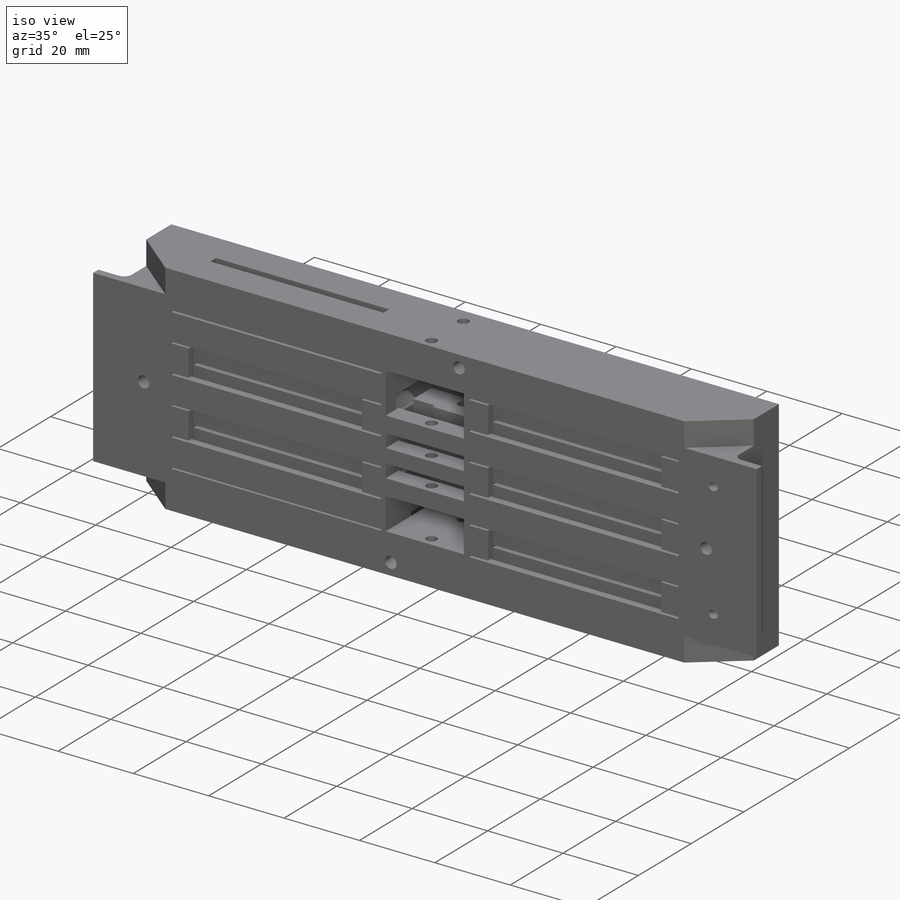
[diagram: iso view]
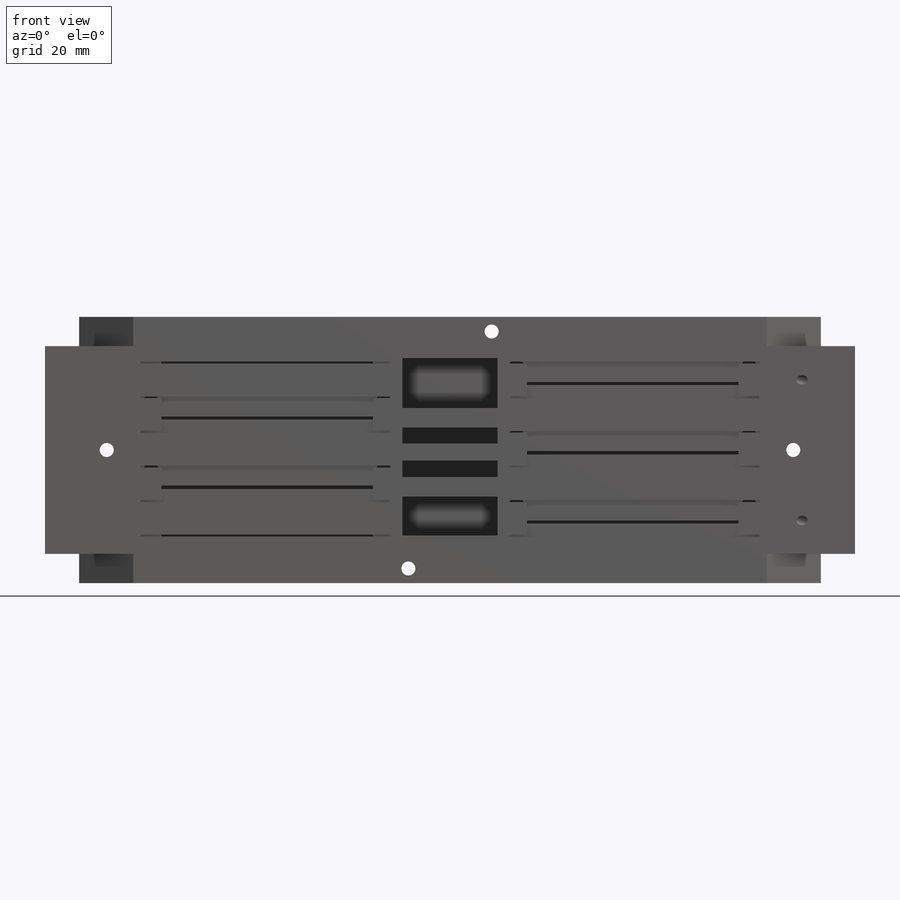
[diagram: front view]
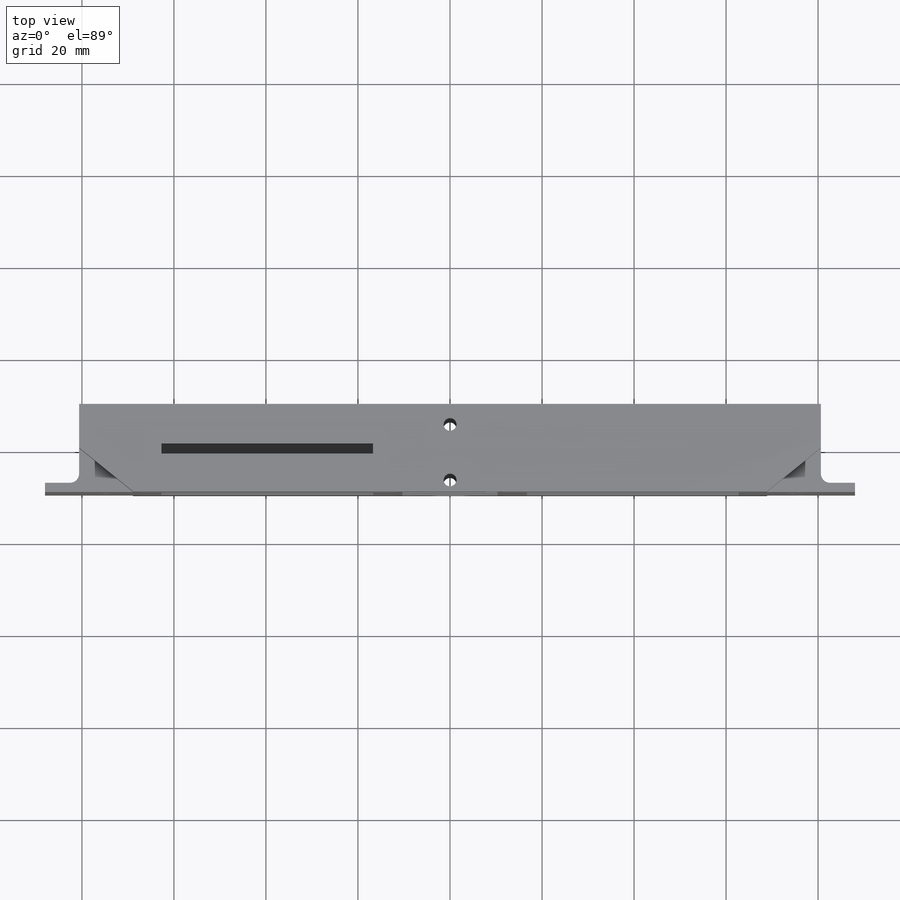
[diagram: top view]
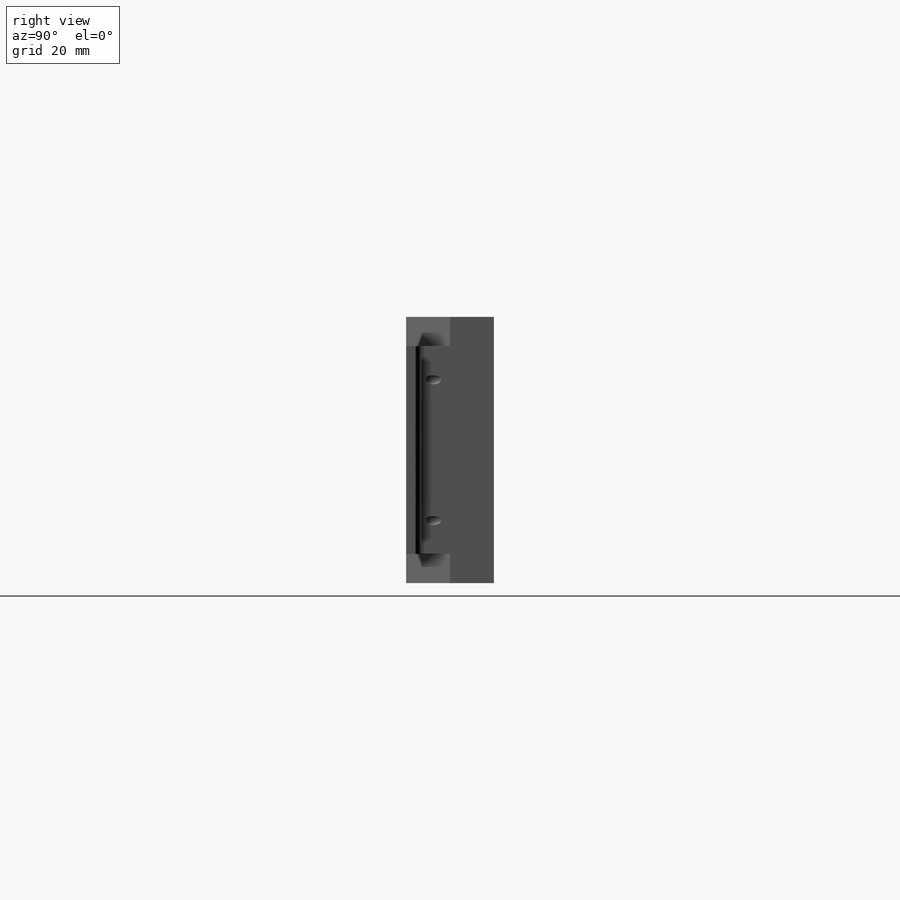
[diagram: right view]
SOLIDWORKS PART (.sldprt)
format: sldprt  version: not decoded by parser v0  size: 2,565,120 bytes
history: native  units: mm
features: sketch x25, cut_extrude x20, extrude x5, material x1, pattern_linear x1, mirror x1, plane x1, fillet x1 (+21 scaffold rows collapsed; 8 parser-record rows omitted)
feature tree (84):
  scaffold x21  (default folders/planes/origin — collapsed)
  material  "PE High Density"
  parser-record x8  (decoder bookkeeping rows leaked as tree rows — omitted from the tree; the rows remain in map.json)
  sketch  "Sketch1"  dims[D1=161.21mm D2=57.8614mm]
  extrude  "Bottom Plate Base"  Depth=9.525mm
  sketch  "Sketch2"  dims[c1.D2=2.84mm c1.D3=2.84mm c1.D4=2.84mm c1.D5=2.84mm c1.D6=2.84mm c1.D16=2.84mm c1.D12=2.84mm c1.D20=2.84mm c1.D1=14.4221mm c2.D4=50.556mm c2.D7=14.4219mm c2.D8=50.556mm c2.D9=7.5078mm c2.D10=3.5132mm c2.D11=0.7003mm c2.D12=2.4224mm c2.D13=2.4224mm c3.D10=3.1188mm c3.D14=3.1303mm c3.D15=2.4224mm c3.D16=2.4224mm c3.D17=0.7003mm c3.D12=~2.732412mm c3.D13=~3.744715mm c4.D15=~2.694668mm c4.D16=~2.552953mm c4.D12=0.4618mm c4.D13=3.54mm c5.D15=20.72mm c5.D16=4.4176mm c5.D12=2.0434mm c5.D18=4.1303mm c5.D19=3.54mm c6.D18=5.217mm c6.D20=9.2305mm]
  cut_extrude  "Through Holes"  [1 undecoded]
  sketch  "Sketch3"  dims[c1.D1=2.922mm c1.D2=3.31mm c1.D3=3.31mm c1.D4=~2.922009mm c2.D4=90.0deg c3.D4=3.31mm c3.D1=3.31mm c3.D5=3.31mm c3.D6=0.0mm]
  cut_extrude  "Top Spreader Cuts"  Depth=3mm
  sketch  "Sketch26"  dims[c1.D1=4.85mm c1.D2=4.85mm c1.D3=4.85mm c1.D4=8.1mm c2.D3=6.477mm c2.D2=8.1mm c2.D1=8.1mm c2.D4=6.477mm c2.D5=~4.841347mm c3.D5=~177.422078deg c4.D5=6.477mm c4.D6=6.477mm]
  cut_extrude  "Top Nut Cuts"  Depth=5.8mm
  sketch  "Sketch30"  dims[D1=3.556mm D2=3.556mm D3=3.556mm D4=3.556mm]
  cut_extrude  "Top Socket Cuts"  Depth=2.2544mm
  sketch  "Sketch4"  dims[c1.D1=1.2431mm c1.D2=6.7038mm c1.D3=1.277mm c1.D4=6.7149mm c1.D5=4.6mm c1.D6=0.4mm c1.D7=0.2mm c1.D8=5.0mm c1.D9=0.5mm c2.D7=0.5mm c2.D10=5.0mm c2.D11=4.6mm c2.D12=0.4mm]
  cut_extrude  "Bottom Cuts"  Depth=1.9mm
  pattern_linear  "LPattern1"  Count1=3 Count2=1 Spacing1=15.0386mm Spacing2=10mm
  sketch  "Sketch19"
  extrude  "End Filler"  Depth=9.525mm
  sketch  "Sketch20"  dims[c1.D1=0.1797mm c1.D2=10.1734mm c1.D3=6.62mm c1.D4=0.1797mm c1.D5=6.62mm c1.D6=9.8186mm c2.D2=10.2531mm c2.D6=9.8983mm]
  cut_extrude  "Top End Spreader Cuts"  Depth=3mm
  sketch  "Sketch31"  dims[c1.D2=8.1mm c1.D4=6.477mm c1.D6=6.477mm c1.D8=6.477mm c2.D4=8.1mm c2.D1=2.92mm c2.D3=2.92mm c2.D5=2.92mm c2.D7=2.92mm c3.D4=~2.119972mm]
  cut_extrude  "Top End Nut Cuts"  Depth=5.8mm
  sketch  "Sketch32"  dims[D1=3.556mm D2=3.556mm D3=3.556mm D4=3.556mm]
  cut_extrude  "Top End Socket Cuts"  Depth=2.2544mm
  sketch  "Sketch15"
  cut_extrude  "End Bus Bar Cuts"  Depth=1.27mm
  sketch  "Sketch13"  dims[c1.D1=~3.16134mm c1.D2=2.844mm c1.D3=2.844mm c1.D6=~2.920115mm c1.D7=2.84mm c1.D8=2.84mm c2.D1=2.84mm c2.D2=2.84mm c3.D1=2.922mm c3.D4=0.2mm c3.D5=0.5mm c3.D6=2.922mm c3.D9=3.81mm c3.D10=3.6857mm c3.D3=2.922mm c4.D4=0.2mm c4.D1=0.4mm c4.D2=1.27mm c4.D3=1.27mm c5.D4=4.93mm c5.D3=5.87mm c5.D6=1.27mm c5.D2=5.87mm]
  cut_extrude  "End Through Holes"  [1 undecoded]
  sketch  "Sketch28"
  cut_extrude  "Bottom End Cuts"  Depth=1.9mm
  sketch  "Sketch41"  dims[D1=6.4mm D2=6.4mm D3=6.0mm D4=6.4mm D5=6.4mm D6=6.0mm]
  cut_extrude  "Cover Connecting Nut Hole 1"  Depth=3.7mm
  sketch  "Sketch42"  dims[D1=8.0mm D2=8.0mm D3=8.0mm D4=8.0mm]
  cut_extrude  "Cover Connecting Nut Hole 2"  Depth=5.7mm
  sketch  "Sketch16"  dims[D1=3.81mm]
  cut_extrude  "BMS Board Clearance"  Depth=4.773mm
  sketch  "Sketch45"  dims[c1.D1=~11.966044mm c2.D1=39.0deg c2.D2=~16.895844mm c3.D2=39.0deg]
  cut_extrude  "Bottom Plate Side Cuts"  Depth=6.35mm
  mirror  "Bottom Plate Sides Lateral Mirror"
  sketch  "Sketch23"  dims[c1.D2=2.0mm c1.D3=2.0mm c1.D4=2.0mm c1.D1=0.0mm c2.D2=0.0mm]
  extrude  "Lower Top Plate"  Depth=7.747mm
  sketch  "Sketch37"  dims[c1.D1=5.71mm c1.D2=5.71mm c1.D4=0.1mm c1.D5=0.1mm c2.D4=0.1mm c2.D5=0.1mm c2.D3=2.0]
  cut_extrude  "Lower Top Plate Cuts"  Depth=0.88mm
  sketch  "Sketch25"
  extrude  "Upper Top Plate"  Depth=1.778mm
  sketch  "Sketch39"  dims[c1.D2=3.05mm c1.D5=3.05mm c1.D7=3.05mm c1.D9=3.05mm c1.D1=7.6525mm c1.D3=3.175mm c1.D4=9.0477mm c2.D1=9.0477mm c2.D6=3.175mm c2.D8=3.175mm c2.D10=3.175mm c2.D11=~7.48505mm c2.D12=~7.48505mm]
  cut_extrude  "Stack Mounting Socket Holes"  [1 undecoded]
  sketch  "Sketch40"  dims[D1=4.75mm D2=4.75mm D3=4.75mm D4=4.75mm]
  cut_extrude  "Stack Mounting Socket Head Holes"  Depth=2.9mm
  sketch  "Sketch18"  dims[D2=2.794mm D3=2.79mm D1=~2.53475mm D4=12.07mm]
  cut_extrude  "BMS Board Mounting Holes"  [1 undecoded]
  plane  "End Cell Board Hole Plane"
  sketch  "Sketch38"  dims[D2=2.0mm D4=2.0mm D1=3.37mm D3=13.61mm D5=3.37mm D6=13.66mm]
  cut_extrude  "End Cell Board Holes"  [1 undecoded]
  sketch  "Sketch46"  dims[D1=7.4199mm]
  extrude  "Cell Side Overlap Extrusion"  Depth=2mm
  fillet  "Cell Side Overlap Fillet"  Radius=2mm
decode coverage: 43 of 53 modeling features carry decoded parameters
note: ~ marks probable driven/reference dimensions
note: 5 parameter values undecoded
summary: no parameter record found for 5 features
note: suppression state not decoded; provenance and decode notes live in map.json
